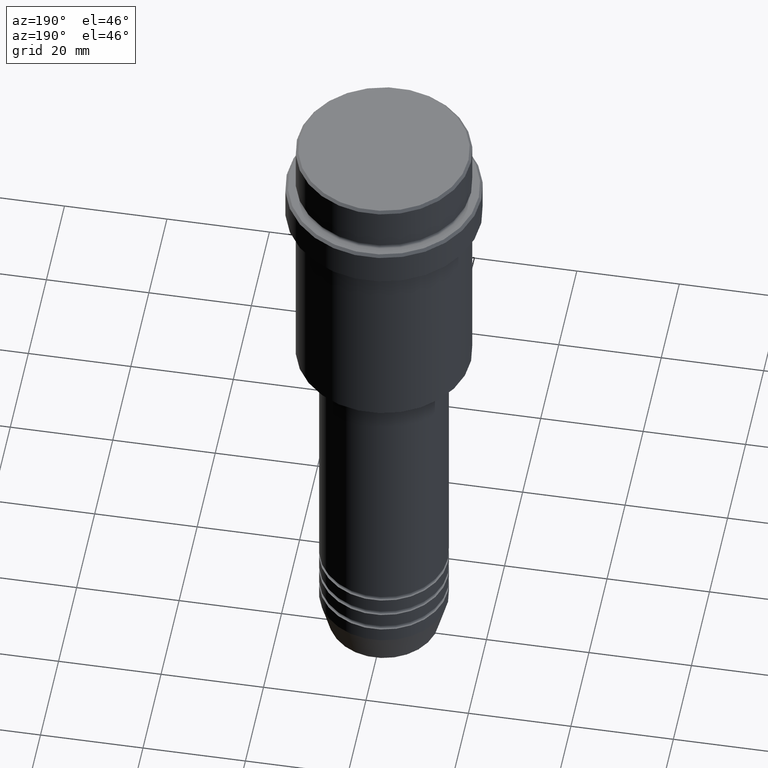
[diagram: clean part render]
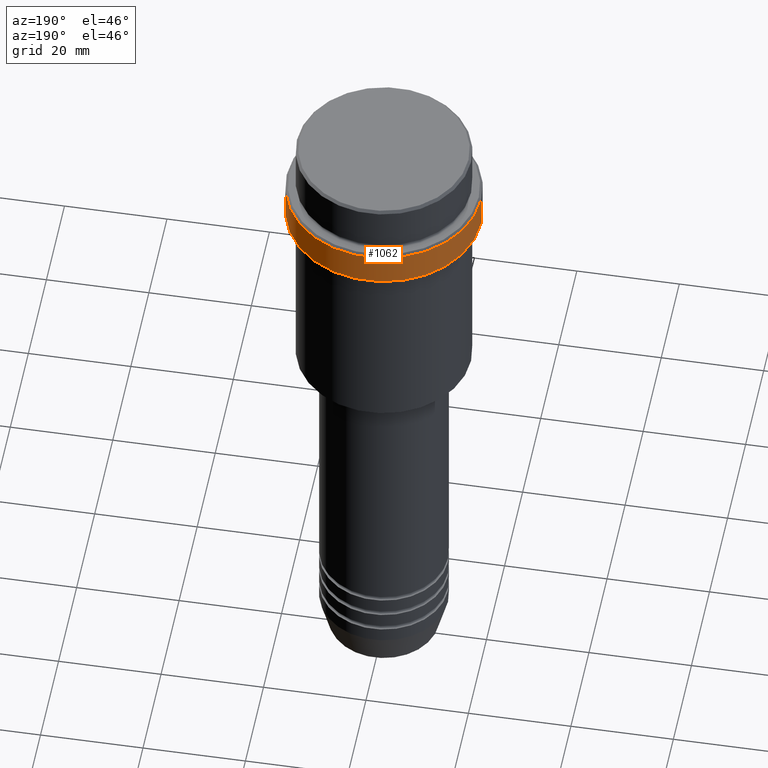
[diagram: same view with one face highlighted and labeled with its STEP entity id]
A machine part, auxiliary view. The second image highlights one B-rep face of the part: STEP entity #1062.
In plain terms, the highlighted cylindrical surface (partial cylindrical patch) has radius 19 mm, axis along (-0, -0, 1).
Its self-contained STEP definition (entity closure, byte-faithful):
#18 = DIRECTION ( 'NONE',  ( -0.000000000000000000, -0.000000000000000000, 1.000000000000000000 ) ) ;
#30 = CARTESIAN_POINT ( 'NONE',  ( -18.99999999999998579, 2.326828918379969393E-15, -10.49999999999997158 ) ) ;
#136 = CARTESIAN_POINT ( 'NONE',  ( 18.99999999999998579, 0.000000000000000000, 0.000000000000000000 ) ) ;
#138 = CARTESIAN_POINT ( 'NONE',  ( 0.000000000000000000, 0.000000000000000000, 0.000000000000000000 ) ) ;
#163 = EDGE_CURVE ( 'NONE', #906, #633, #747, .T. ) ;
#174 = EDGE_LOOP ( 'NONE', ( #1381, #1139, #660, #397 ) ) ;
#184 = EDGE_CURVE ( 'NONE', #191, #906, #1389, .T. ) ;
#191 = VERTEX_POINT ( 'NONE', #763 ) ;
#201 = EDGE_CURVE ( 'NONE', #191, #1386, #655, .T. ) ;
#236 = CARTESIAN_POINT ( 'NONE',  ( 0.000000000000000000, 0.000000000000000000, -17.00000000000000000 ) ) ;
#246 = AXIS2_PLACEMENT_3D ( 'NONE', #236, #1198, #1077 ) ;
#253 = DIRECTION ( 'NONE',  ( -0.000000000000000000, -0.000000000000000000, 1.000000000000000000 ) ) ;
#282 = DIRECTION ( 'NONE',  ( 1.000000000000000000, 0.000000000000000000, 0.000000000000000000 ) ) ;
#397 = ORIENTED_EDGE ( 'NONE', *, *, #201, .F. ) ;
#451 = FACE_OUTER_BOUND ( 'NONE', #174, .T. ) ;
#515 = VECTOR ( 'NONE', #18, 1000.000000000000000 ) ;
#519 = CARTESIAN_POINT ( 'NONE',  ( -18.99999999999998579, 2.326828918379969393E-15, 0.000000000000000000 ) ) ;
#545 = DIRECTION ( 'NONE',  ( 1.000000000000000000, 0.000000000000000000, 0.000000000000000000 ) ) ;
#633 = VERTEX_POINT ( 'NONE', #30 ) ;
#655 = LINE ( 'NONE', #136, #1229 ) ;
#660 = ORIENTED_EDGE ( 'NONE', *, *, #718, .T. ) ;
#674 = CARTESIAN_POINT ( 'NONE',  ( 18.99999999999998579, 0.000000000000000000, -10.49999999999997158 ) ) ;
#710 = AXIS2_PLACEMENT_3D ( 'NONE', #138, #253, #282 ) ;
#718 = EDGE_CURVE ( 'NONE', #633, #1386, #1132, .T. ) ;
#747 = LINE ( 'NONE', #519, #515 ) ;
#763 = CARTESIAN_POINT ( 'NONE',  ( 18.99999999999998579, 0.000000000000000000, -17.00000000000000000 ) ) ;
#868 = CYLINDRICAL_SURFACE ( 'NONE', #710, 18.99999999999998579 ) ;
#906 = VERTEX_POINT ( 'NONE', #1005 ) ;
#1005 = CARTESIAN_POINT ( 'NONE',  ( -18.99999999999998579, 2.326828918379969393E-15, -17.00000000000000000 ) ) ;
#1062 = ADVANCED_FACE ( 'NONE', ( #451 ), #868, .T. ) ;
#1077 = DIRECTION ( 'NONE',  ( 1.000000000000000000, 0.000000000000000000, 0.000000000000000000 ) ) ;
#1132 = CIRCLE ( 'NONE', #1251, 18.99999999999998579 ) ;
#1139 = ORIENTED_EDGE ( 'NONE', *, *, #163, .T. ) ;
#1198 = DIRECTION ( 'NONE',  ( -0.000000000000000000, -0.000000000000000000, 1.000000000000000000 ) ) ;
#1208 = DIRECTION ( 'NONE',  ( -0.000000000000000000, -0.000000000000000000, 1.000000000000000000 ) ) ;
#1218 = CARTESIAN_POINT ( 'NONE',  ( 0.000000000000000000, 0.000000000000000000, -10.49999999999997158 ) ) ;
#1229 = VECTOR ( 'NONE', #1208, 1000.000000000000000 ) ;
#1251 = AXIS2_PLACEMENT_3D ( 'NONE', #1218, #1336, #545 ) ;
#1336 = DIRECTION ( 'NONE',  ( 0.000000000000000000, 0.000000000000000000, -1.000000000000000000 ) ) ;
#1381 = ORIENTED_EDGE ( 'NONE', *, *, #184, .T. ) ;
#1386 = VERTEX_POINT ( 'NONE', #674 ) ;
#1389 = CIRCLE ( 'NONE', #246, 18.99999999999998579 ) ;